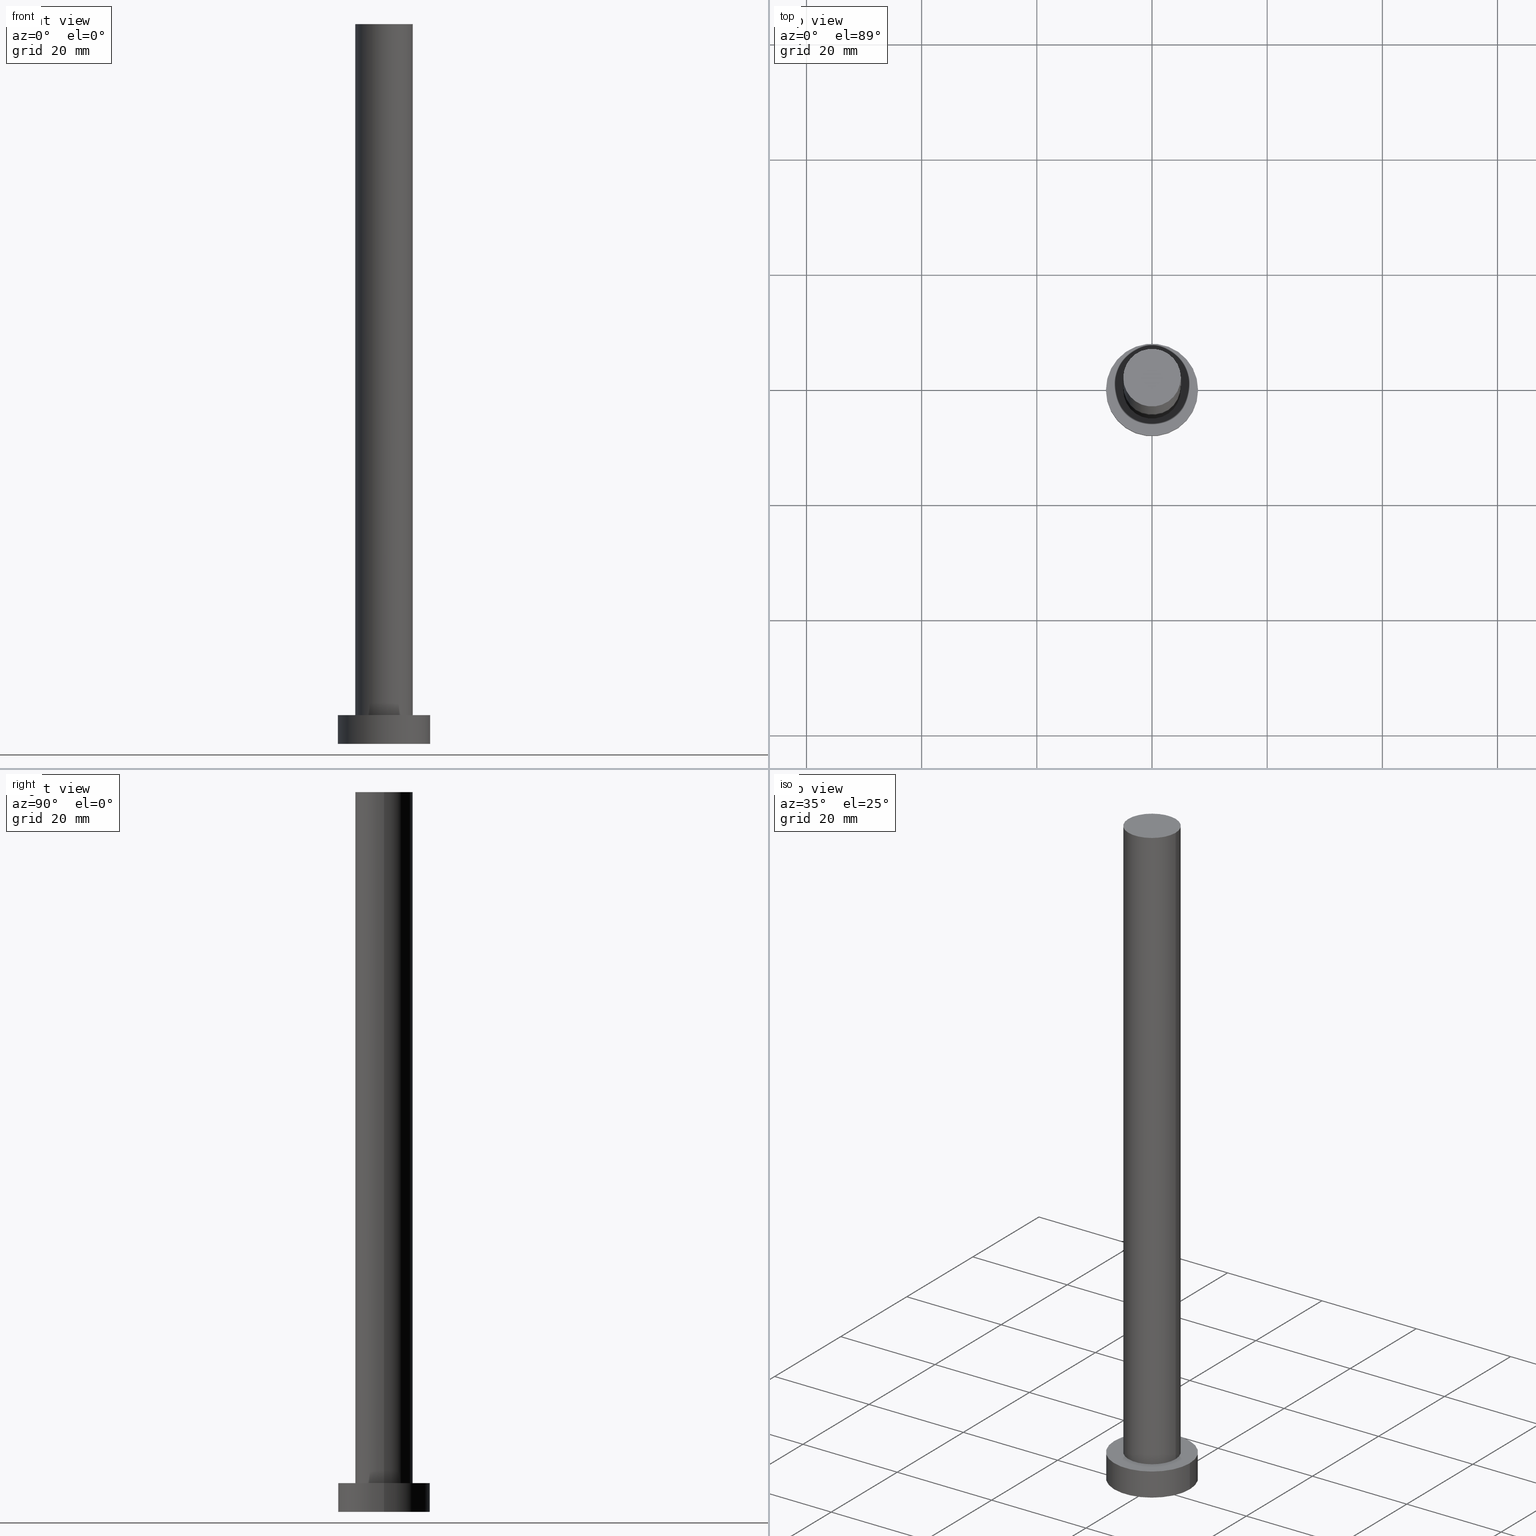
[diagram: canonical four-view strip — front | top / right | iso, engineering-drawing reading convention]
A machine part, canonical four-view strip (front | top / right | iso — engineering-drawing reading convention). The complete STEP part file that produces these views, byte-faithful:
ISO-10303-21;
HEADER;
FILE_DESCRIPTION (( 'STEP AP203' ),
    '1' );
FILE_NAME ('c6aa.STEP',
    '2023-02-12T11:28:07',
    ( '' ),
    ( '' ),
    'SwSTEP 2.0',
    'SolidWorks 2019',
    '' );
FILE_SCHEMA (( 'CONFIG_CONTROL_DESIGN' ));
ENDSEC;

DATA;
#1 = DIRECTION ( 'NONE',  ( 0.000000000000000000, 0.000000000000000000, 1.000000000000000000 ) ) ;
#2 = CIRCLE ( 'NONE', #129, 5.000000000000000888 ) ;
#3 = PERSON_AND_ORGANIZATION_ROLE ( 'design_supplier' ) ;
#4 = EDGE_CURVE ( 'NONE', #217, #7, #137, .T. ) ;
#5 = FACE_OUTER_BOUND ( 'NONE', #131, .T. ) ;
#6 = AXIS2_PLACEMENT_3D ( 'NONE', #181, #84, #65 ) ;
#7 = VERTEX_POINT ( 'NONE', #36 ) ;
#8 = CARTESIAN_POINT ( 'NONE',  ( 5.000000000000000888, 6.123233995736767268E-16, 125.0000000000000000 ) ) ;
#9 = APPROVAL_ROLE ( '' ) ;
#10 = EDGE_CURVE ( 'NONE', #206, #255, #147, .T. ) ;
#11 = CARTESIAN_POINT ( 'NONE',  ( 0.000000000000000000, 0.000000000000000000, 0.000000000000000000 ) ) ;
#12 = DATE_AND_TIME ( #35, #194 ) ;
#13 = DIRECTION ( 'NONE',  ( 1.000000000000000000, 0.000000000000000000, 0.000000000000000000 ) ) ;
#14 = PRODUCT ( 'c6aa', 'c6aa', '', ( #127 ) ) ;
#15 = EDGE_CURVE ( 'NONE', #255, #206, #44, .T. ) ;
#16 = DIRECTION ( 'NONE',  ( -1.000000000000000000, 0.000000000000000000, 0.000000000000000000 ) ) ;
#17 = DIRECTION ( 'NONE',  ( 0.000000000000000000, 0.000000000000000000, 1.000000000000000000 ) ) ;
#18 = VERTEX_POINT ( 'NONE', #149 ) ;
#19 = FACE_OUTER_BOUND ( 'NONE', #123, .T. ) ;
#20 = VERTEX_POINT ( 'NONE', #32 ) ;
#21 = LOCAL_TIME ( 12, 28, 7.000000000000000000, #244 ) ;
#22 = APPROVAL_STATUS ( 'not_yet_approved' ) ;
#23 = ADVANCED_FACE ( 'NONE', ( #203 ), #198, .T. ) ;
#24 = DATE_AND_TIME ( #200, #164 ) ;
#25 = DIRECTION ( 'NONE',  ( 0.000000000000000000, 0.000000000000000000, 1.000000000000000000 ) ) ;
#26 = ORIENTED_EDGE ( 'NONE', *, *, #4, .T. ) ;
#27 = FACE_OUTER_BOUND ( 'NONE', #59, .T. ) ;
#28 = APPROVAL_STATUS ( 'not_yet_approved' ) ;
#29 = DIRECTION ( 'NONE',  ( -0.000000000000000000, -0.000000000000000000, -1.000000000000000000 ) ) ;
#30 = DIRECTION ( 'NONE',  ( -1.000000000000000000, 0.000000000000000000, 0.000000000000000000 ) ) ;
#31 = APPROVAL_ROLE ( '' ) ;
#32 = CARTESIAN_POINT ( 'NONE',  ( 5.000000000000000888, 6.123233995736767268E-16, 125.0000000000000000 ) ) ;
#33 = VECTOR ( 'NONE', #46, 1000.000000000000000 ) ;
#34 = LINE ( 'NONE', #103, #33 ) ;
#35 = CALENDAR_DATE ( 2023, 12, 2 ) ;
#36 = CARTESIAN_POINT ( 'NONE',  ( 8.000000000000000000, 9.797174393178825657E-16, 0.000000000000000000 ) ) ;
#37 = PERSON_AND_ORGANIZATION ( #112, #154 ) ;
#38 = CYLINDRICAL_SURFACE ( 'NONE', #72, 5.000000000000000888 ) ;
#39 = CARTESIAN_POINT ( 'NONE',  ( -8.000000000000000000, 0.000000000000000000, 0.000000000000000000 ) ) ;
#40 = ORIENTED_EDGE ( 'NONE', *, *, #97, .T. ) ;
#41 = APPROVAL_ROLE ( '' ) ;
#42 = PLANE ( 'NONE',  #167 ) ;
#43 = CC_DESIGN_PERSON_AND_ORGANIZATION_ASSIGNMENT ( #116, #3, ( #240 ) ) ;
#44 = CIRCLE ( 'NONE', #222, 8.000000000000000000 ) ;
#45 = CARTESIAN_POINT ( 'NONE',  ( -8.000000000000000000, 0.000000000000000000, 5.000000000000000000 ) ) ;
#46 = DIRECTION ( 'NONE',  ( -0.000000000000000000, -0.000000000000000000, -1.000000000000000000 ) ) ;
#47 = APPROVAL_PERSON_ORGANIZATION ( #211, #216, #41 ) ;
#48 = ORIENTED_EDGE ( 'NONE', *, *, #15, .F. ) ;
#49 = CARTESIAN_POINT ( 'NONE',  ( -5.000000000000000888, 0.000000000000000000, 125.0000000000000000 ) ) ;
#50 = ADVANCED_FACE ( 'NONE', ( #5 ), #201, .F. ) ;
#51 = PRODUCT_DEFINITION_SHAPE ( 'NONE', 'NONE',  #92 ) ;
#52 = DIRECTION ( 'NONE',  ( 0.000000000000000000, 0.000000000000000000, 1.000000000000000000 ) ) ;
#53 = AXIS2_PLACEMENT_3D ( 'NONE', #118, #29, #245 ) ;
#54 = EDGE_LOOP ( 'NONE', ( #249, #187 ) ) ;
#55 = CC_DESIGN_PERSON_AND_ORGANIZATION_ASSIGNMENT ( #37, #106, ( #92 ) ) ;
#56 = PERSON_AND_ORGANIZATION_ROLE ( 'design_owner' ) ;
#57 = ORIENTED_EDGE ( 'NONE', *, *, #10, .F. ) ;
#58 = LOCAL_TIME ( 12, 28, 7.000000000000000000, #60 ) ;
#59 = EDGE_LOOP ( 'NONE', ( #57, #40, #101, #120 ) ) ;
#60 = COORDINATED_UNIVERSAL_TIME_OFFSET ( 1, 0, .AHEAD. ) ;
#61 = VECTOR ( 'NONE', #213, 1000.000000000000000 ) ;
#62 = EDGE_CURVE ( 'NONE', #20, #18, #80, .T. ) ;
#63 = CC_DESIGN_PERSON_AND_ORGANIZATION_ASSIGNMENT ( #225, #56, ( #14 ) ) ;
#64 = APPROVAL_DATE_TIME ( #24, #169 ) ;
#65 = DIRECTION ( 'NONE',  ( -1.000000000000000000, 0.000000000000000000, 0.000000000000000000 ) ) ;
#66 = ORIENTED_EDGE ( 'NONE', *, *, #4, .F. ) ;
#67 = APPLICATION_PROTOCOL_DEFINITION ( 'international standard', 'config_control_design', 1994, #184 ) ;
#68 = DIRECTION ( 'NONE',  ( 0.000000000000000000, 0.000000000000000000, 1.000000000000000000 ) ) ;
#69 = CIRCLE ( 'NONE', #180, 5.000000000000000888 ) ;
#70 = SECURITY_CLASSIFICATION_LEVEL ( 'unclassified' ) ;
#71 = ADVANCED_FACE ( 'NONE', ( #27 ), #150, .T. ) ;
#72 = AXIS2_PLACEMENT_3D ( 'NONE', #109, #190, #16 ) ;
#73 = ORIENTED_EDGE ( 'NONE', *, *, #186, .F. ) ;
#74 = EDGE_CURVE ( 'NONE', #241, #238, #34, .T. ) ;
#75 = CARTESIAN_POINT ( 'NONE',  ( 0.000000000000000000, 0.000000000000000000, 125.0000000000000000 ) ) ;
#76 = DATE_AND_TIME ( #229, #58 ) ;
#77 = VECTOR ( 'NONE', #165, 1000.000000000000000 ) ;
#78 = CC_DESIGN_DATE_AND_TIME_ASSIGNMENT ( #76, #157, ( #92 ) ) ;
#79 = AXIS2_PLACEMENT_3D ( 'NONE', #11, #25, #197 ) ;
#80 = LINE ( 'NONE', #8, #77 ) ;
#81 = DIRECTION ( 'NONE',  ( 1.000000000000000000, 0.000000000000000000, 0.000000000000000000 ) ) ;
#82 = CC_DESIGN_SECURITY_CLASSIFICATION ( #232, ( #240 ) ) ;
#83 = FACE_OUTER_BOUND ( 'NONE', #54, .T. ) ;
#84 = DIRECTION ( 'NONE',  ( -0.000000000000000000, -0.000000000000000000, -1.000000000000000000 ) ) ;
#85 = APPROVAL_DATE_TIME ( #12, #204 ) ;
#86 = APPROVAL_PERSON_ORGANIZATION ( #223, #169, #31 ) ;
#87 = CC_DESIGN_DATE_AND_TIME_ASSIGNMENT ( #128, #125, ( #232 ) ) ;
#88 = DIRECTION ( 'NONE',  ( 1.000000000000000000, 0.000000000000000000, 0.000000000000000000 ) ) ;
#89 =( GEOMETRIC_REPRESENTATION_CONTEXT ( 3 ) GLOBAL_UNCERTAINTY_ASSIGNED_CONTEXT ( ( #188 ) ) GLOBAL_UNIT_ASSIGNED_CONTEXT ( ( #218, #236, #177 ) ) REPRESENTATION_CONTEXT ( 'NONE', 'WORKASPACE' ) );
#90 = EDGE_CURVE ( 'NONE', #18, #238, #159, .T. ) ;
#91 = DIRECTION ( 'NONE',  ( 1.000000000000000000, 0.000000000000000000, 0.000000000000000000 ) ) ;
#92 = PRODUCT_DEFINITION ( 'NEZN�M�', '', #240, #161 ) ;
#93 = ORIENTED_EDGE ( 'NONE', *, *, #97, .F. ) ;
#94 = FACE_OUTER_BOUND ( 'NONE', #168, .T. ) ;
#95 = EDGE_LOOP ( 'NONE', ( #111, #191, #145, #163 ) ) ;
#96 = CARTESIAN_POINT ( 'NONE',  ( 0.000000000000000000, 0.000000000000000000, 125.0000000000000000 ) ) ;
#97 = EDGE_CURVE ( 'NONE', #206, #7, #228, .T. ) ;
#98 = APPLICATION_CONTEXT ( 'configuration controlled 3d designs of mechanical parts and assemblies' ) ;
#99 = PLANE ( 'NONE',  #115 ) ;
#100 = AXIS2_PLACEMENT_3D ( 'NONE', #226, #126, #102 ) ;
#101 = ORIENTED_EDGE ( 'NONE', *, *, #186, .T. ) ;
#102 = DIRECTION ( 'NONE',  ( 1.000000000000000000, 0.000000000000000000, 0.000000000000000000 ) ) ;
#103 = CARTESIAN_POINT ( 'NONE',  ( -5.000000000000000888, 0.000000000000000000, 125.0000000000000000 ) ) ;
#104 = DIRECTION ( 'NONE',  ( 0.000000000000000000, 0.000000000000000000, 1.000000000000000000 ) ) ;
#105 = CARTESIAN_POINT ( 'NONE',  ( 0.000000000000000000, 0.000000000000000000, 0.000000000000000000 ) ) ;
#106 = PERSON_AND_ORGANIZATION_ROLE ( 'creator' ) ;
#107 = DIRECTION ( 'NONE',  ( 0.000000000000000000, 0.000000000000000000, 1.000000000000000000 ) ) ;
#108 = ORIENTED_EDGE ( 'NONE', *, *, #185, .F. ) ;
#109 = CARTESIAN_POINT ( 'NONE',  ( 0.000000000000000000, 0.000000000000000000, 125.0000000000000000 ) ) ;
#110 = EDGE_CURVE ( 'NONE', #241, #20, #2, .T. ) ;
#111 = ORIENTED_EDGE ( 'NONE', *, *, #62, .F. ) ;
#112 = PERSON ( 'NEUR�EN�', 'NEUR�EN�', 'NEUR�EN�', ('NEUR�EN�'), ('NEUR�EN�'), ('NEUR�EN�') ) ;
#113 = DIRECTION ( 'NONE',  ( 1.000000000000000000, 0.000000000000000000, -0.000000000000000000 ) ) ;
#114 = MANIFOLD_SOLID_BREP ( 'P�idat vysunut�m3', #141 ) ;
#115 = AXIS2_PLACEMENT_3D ( 'NONE', #239, #151, #237 ) ;
#116 = PERSON_AND_ORGANIZATION ( #112, #154 ) ;
#117 = DATE_AND_TIME ( #155, #132 ) ;
#118 = CARTESIAN_POINT ( 'NONE',  ( 0.000000000000000000, 0.000000000000000000, 125.0000000000000000 ) ) ;
#119 = PERSON_AND_ORGANIZATION ( #112, #154 ) ;
#120 = ORIENTED_EDGE ( 'NONE', *, *, #214, .F. ) ;
#121 = CARTESIAN_POINT ( 'NONE',  ( -5.000000000000000888, 0.000000000000000000, 5.000000000000000000 ) ) ;
#122 = CALENDAR_DATE ( 2023, 12, 2 ) ;
#123 = EDGE_LOOP ( 'NONE', ( #93, #48, #134, #26 ) ) ;
#124 = DIRECTION ( 'NONE',  ( -0.000000000000000000, -0.000000000000000000, -1.000000000000000000 ) ) ;
#125 = DATE_TIME_ROLE ( 'classification_date' ) ;
#126 = DIRECTION ( 'NONE',  ( 0.000000000000000000, 0.000000000000000000, 1.000000000000000000 ) ) ;
#127 = MECHANICAL_CONTEXT ( 'NONE', #184, 'mechanical' ) ;
#128 = DATE_AND_TIME ( #122, #21 ) ;
#129 = AXIS2_PLACEMENT_3D ( 'NONE', #75, #17, #171 ) ;
#130 = DIRECTION ( 'NONE',  ( 0.000000000000000000, 0.000000000000000000, 1.000000000000000000 ) ) ;
#131 = EDGE_LOOP ( 'NONE', ( #66, #73 ) ) ;
#132 = LOCAL_TIME ( 12, 28, 7.000000000000000000, #136 ) ;
#133 = CARTESIAN_POINT ( 'NONE',  ( 0.000000000000000000, 0.000000000000000000, 0.000000000000000000 ) ) ;
#134 = ORIENTED_EDGE ( 'NONE', *, *, #214, .T. ) ;
#135 = FACE_OUTER_BOUND ( 'NONE', #210, .T. ) ;
#136 = COORDINATED_UNIVERSAL_TIME_OFFSET ( 1, 0, .AHEAD. ) ;
#137 = CIRCLE ( 'NONE', #189, 8.000000000000000000 ) ;
#138 = CARTESIAN_POINT ( 'NONE',  ( -8.000000000000000000, 0.000000000000000000, 5.000000000000000000 ) ) ;
#139 = CC_DESIGN_PERSON_AND_ORGANIZATION_ASSIGNMENT ( #119, #178, ( #240 ) ) ;
#140 = ORIENTED_EDGE ( 'NONE', *, *, #90, .F. ) ;
#141 = CLOSED_SHELL ( 'NONE', ( #175, #71, #233, #242, #50, #23, #146 ) ) ;
#142 = COORDINATED_UNIVERSAL_TIME_OFFSET ( 1, 0, .AHEAD. ) ;
#143 = APPROVAL_DATE_TIME ( #117, #216 ) ;
#144 = ORIENTED_EDGE ( 'NONE', *, *, #110, .T. ) ;
#145 = ORIENTED_EDGE ( 'NONE', *, *, #74, .T. ) ;
#146 = ADVANCED_FACE ( 'NONE', ( #94 ), #42, .T. ) ;
#147 = CIRCLE ( 'NONE', #100, 8.000000000000000000 ) ;
#148 = CC_DESIGN_PERSON_AND_ORGANIZATION_ASSIGNMENT ( #199, #176, ( #232 ) ) ;
#149 = CARTESIAN_POINT ( 'NONE',  ( 5.000000000000000888, 6.123233995736767268E-16, 5.000000000000000000 ) ) ;
#150 = CYLINDRICAL_SURFACE ( 'NONE', #6, 8.000000000000000000 ) ;
#151 = DIRECTION ( 'NONE',  ( 0.000000000000000000, 0.000000000000000000, 1.000000000000000000 ) ) ;
#152 = ORIENTED_EDGE ( 'NONE', *, *, #90, .T. ) ;
#153 = PERSON_AND_ORGANIZATION ( #112, #154 ) ;
#154 = ORGANIZATION ( 'NEUR�EN�', 'NEUR�EN�', '' ) ;
#155 = CALENDAR_DATE ( 2023, 12, 2 ) ;
#156 = EDGE_CURVE ( 'NONE', #20, #241, #69, .T. ) ;
#157 = DATE_TIME_ROLE ( 'creation_date' ) ;
#158 = CARTESIAN_POINT ( 'NONE',  ( 8.000000000000000000, 9.797174393178825657E-16, 5.000000000000000000 ) ) ;
#159 = CIRCLE ( 'NONE', #202, 5.000000000000000888 ) ;
#160 = DIRECTION ( 'NONE',  ( 1.000000000000000000, 0.000000000000000000, 0.000000000000000000 ) ) ;
#161 = DESIGN_CONTEXT ( 'detailed design', #98, 'design' ) ;
#162 = CC_DESIGN_APPROVAL ( #204, ( #92 ) ) ;
#163 = ORIENTED_EDGE ( 'NONE', *, *, #185, .T. ) ;
#164 = LOCAL_TIME ( 12, 28, 7.000000000000000000, #142 ) ;
#165 = DIRECTION ( 'NONE',  ( -0.000000000000000000, -0.000000000000000000, -1.000000000000000000 ) ) ;
#166 = ORIENTED_EDGE ( 'NONE', *, *, #62, .T. ) ;
#167 = AXIS2_PLACEMENT_3D ( 'NONE', #234, #107, #113 ) ;
#168 = EDGE_LOOP ( 'NONE', ( #144, #182 ) ) ;
#169 = APPROVAL ( #28, 'NEUR�EN�' ) ;
#170 = AXIS2_PLACEMENT_3D ( 'NONE', #253, #193, #91 ) ;
#171 = DIRECTION ( 'NONE',  ( 1.000000000000000000, 0.000000000000000000, 0.000000000000000000 ) ) ;
#172 = DIRECTION ( 'NONE',  ( 0.000000000000000000, 0.000000000000000000, 1.000000000000000000 ) ) ;
#173 = CARTESIAN_POINT ( 'NONE',  ( 0.000000000000000000, 0.000000000000000000, 0.000000000000000000 ) ) ;
#174 = CYLINDRICAL_SURFACE ( 'NONE', #215, 8.000000000000000000 ) ;
#175 = ADVANCED_FACE ( 'NONE', ( #135 ), #38, .T. ) ;
#176 = PERSON_AND_ORGANIZATION_ROLE ( 'classification_officer' ) ;
#177 =( NAMED_UNIT ( * ) SI_UNIT ( $, .STERADIAN. ) SOLID_ANGLE_UNIT ( ) );
#178 = PERSON_AND_ORGANIZATION_ROLE ( 'creator' ) ;
#179 = CARTESIAN_POINT ( 'NONE',  ( 0.000000000000000000, 0.000000000000000000, 5.000000000000000000 ) ) ;
#180 = AXIS2_PLACEMENT_3D ( 'NONE', #96, #1, #230 ) ;
#181 = CARTESIAN_POINT ( 'NONE',  ( 0.000000000000000000, 0.000000000000000000, 5.000000000000000000 ) ) ;
#182 = ORIENTED_EDGE ( 'NONE', *, *, #156, .T. ) ;
#183 = AXIS2_PLACEMENT_3D ( 'NONE', #133, #130, #88 ) ;
#184 = APPLICATION_CONTEXT ( 'configuration controlled 3d designs of mechanical parts and assemblies' ) ;
#185 = EDGE_CURVE ( 'NONE', #238, #18, #220, .T. ) ;
#186 = EDGE_CURVE ( 'NONE', #7, #217, #248, .T. ) ;
#187 = ORIENTED_EDGE ( 'NONE', *, *, #10, .T. ) ;
#188 = UNCERTAINTY_MEASURE_WITH_UNIT (LENGTH_MEASURE( 1.000000000000000082E-05 ), #218, 'distance_accuracy_value', 'NONE');
#189 = AXIS2_PLACEMENT_3D ( 'NONE', #105, #104, #13 ) ;
#190 = DIRECTION ( 'NONE',  ( -0.000000000000000000, -0.000000000000000000, -1.000000000000000000 ) ) ;
#191 = ORIENTED_EDGE ( 'NONE', *, *, #110, .F. ) ;
#192 = ORIENTED_EDGE ( 'NONE', *, *, #74, .F. ) ;
#193 = DIRECTION ( 'NONE',  ( 0.000000000000000000, 0.000000000000000000, 1.000000000000000000 ) ) ;
#194 = LOCAL_TIME ( 12, 28, 7.000000000000000000, #246 ) ;
#195 = ADVANCED_BREP_SHAPE_REPRESENTATION ( 'c6aa', ( #114, #183 ), #89 ) ;
#196 = DIRECTION ( 'NONE',  ( -0.000000000000000000, -0.000000000000000000, -1.000000000000000000 ) ) ;
#197 = DIRECTION ( 'NONE',  ( 1.000000000000000000, 0.000000000000000000, -0.000000000000000000 ) ) ;
#198 = CYLINDRICAL_SURFACE ( 'NONE', #53, 5.000000000000000888 ) ;
#199 = PERSON_AND_ORGANIZATION ( #112, #154 ) ;
#200 = CALENDAR_DATE ( 2023, 12, 2 ) ;
#201 = PLANE ( 'NONE',  #79 ) ;
#202 = AXIS2_PLACEMENT_3D ( 'NONE', #179, #68, #251 ) ;
#203 = FACE_OUTER_BOUND ( 'NONE', #95, .T. ) ;
#204 = APPROVAL ( #209, 'NEUR�EN�' ) ;
#205 = PRODUCT_RELATED_PRODUCT_CATEGORY ( 'detail', '', ( #14 ) ) ;
#206 = VERTEX_POINT ( 'NONE', #158 ) ;
#207 = APPLICATION_PROTOCOL_DEFINITION ( 'international standard', 'config_control_design', 1994, #98 ) ;
#208 = AXIS2_PLACEMENT_3D ( 'NONE', #173, #172, #160 ) ;
#209 = APPROVAL_STATUS ( 'not_yet_approved' ) ;
#210 = EDGE_LOOP ( 'NONE', ( #221, #166, #152, #192 ) ) ;
#211 = PERSON_AND_ORGANIZATION ( #112, #154 ) ;
#212 = CC_DESIGN_APPROVAL ( #216, ( #240 ) ) ;
#213 = DIRECTION ( 'NONE',  ( -0.000000000000000000, -0.000000000000000000, -1.000000000000000000 ) ) ;
#214 = EDGE_CURVE ( 'NONE', #255, #217, #231, .T. ) ;
#215 = AXIS2_PLACEMENT_3D ( 'NONE', #254, #124, #30 ) ;
#216 = APPROVAL ( #22, 'NEUR�EN�' ) ;
#217 = VERTEX_POINT ( 'NONE', #39 ) ;
#218 =( LENGTH_UNIT ( ) NAMED_UNIT ( * ) SI_UNIT ( .MILLI., .METRE. ) );
#219 = SHAPE_DEFINITION_REPRESENTATION ( #51, #195 ) ;
#220 = CIRCLE ( 'NONE', #170, 5.000000000000000888 ) ;
#221 = ORIENTED_EDGE ( 'NONE', *, *, #156, .F. ) ;
#222 = AXIS2_PLACEMENT_3D ( 'NONE', #247, #52, #81 ) ;
#223 = PERSON_AND_ORGANIZATION ( #112, #154 ) ;
#224 = CC_DESIGN_APPROVAL ( #169, ( #232 ) ) ;
#225 = PERSON_AND_ORGANIZATION ( #112, #154 ) ;
#226 = CARTESIAN_POINT ( 'NONE',  ( 0.000000000000000000, 0.000000000000000000, 5.000000000000000000 ) ) ;
#227 = VECTOR ( 'NONE', #196, 1000.000000000000000 ) ;
#228 = LINE ( 'NONE', #252, #227 ) ;
#229 = CALENDAR_DATE ( 2023, 12, 2 ) ;
#230 = DIRECTION ( 'NONE',  ( 1.000000000000000000, 0.000000000000000000, 0.000000000000000000 ) ) ;
#231 = LINE ( 'NONE', #138, #61 ) ;
#232 = SECURITY_CLASSIFICATION ( '', '', #70 ) ;
#233 = ADVANCED_FACE ( 'NONE', ( #19 ), #174, .T. ) ;
#234 = CARTESIAN_POINT ( 'NONE',  ( 0.000000000000000000, 0.000000000000000000, 125.0000000000000000 ) ) ;
#235 = APPROVAL_PERSON_ORGANIZATION ( #153, #204, #9 ) ;
#236 =( NAMED_UNIT ( * ) PLANE_ANGLE_UNIT ( ) SI_UNIT ( $, .RADIAN. ) );
#237 = DIRECTION ( 'NONE',  ( 1.000000000000000000, 0.000000000000000000, -0.000000000000000000 ) ) ;
#238 = VERTEX_POINT ( 'NONE', #121 ) ;
#239 = CARTESIAN_POINT ( 'NONE',  ( 0.000000000000000000, 0.000000000000000000, 5.000000000000000000 ) ) ;
#240 = PRODUCT_DEFINITION_FORMATION_WITH_SPECIFIED_SOURCE ( 'LIBOVOLN�', '', #14, .NOT_KNOWN. ) ;
#241 = VERTEX_POINT ( 'NONE', #49 ) ;
#242 = ADVANCED_FACE ( 'NONE', ( #243, #83 ), #99, .T. ) ;
#243 = FACE_BOUND ( 'NONE', #250, .T. ) ;
#244 = COORDINATED_UNIVERSAL_TIME_OFFSET ( 1, 0, .AHEAD. ) ;
#245 = DIRECTION ( 'NONE',  ( -1.000000000000000000, 0.000000000000000000, 0.000000000000000000 ) ) ;
#246 = COORDINATED_UNIVERSAL_TIME_OFFSET ( 1, 0, .AHEAD. ) ;
#247 = CARTESIAN_POINT ( 'NONE',  ( 0.000000000000000000, 0.000000000000000000, 5.000000000000000000 ) ) ;
#248 = CIRCLE ( 'NONE', #208, 8.000000000000000000 ) ;
#249 = ORIENTED_EDGE ( 'NONE', *, *, #15, .T. ) ;
#250 = EDGE_LOOP ( 'NONE', ( #108, #140 ) ) ;
#251 = DIRECTION ( 'NONE',  ( 1.000000000000000000, 0.000000000000000000, 0.000000000000000000 ) ) ;
#252 = CARTESIAN_POINT ( 'NONE',  ( 8.000000000000000000, 9.797174393178825657E-16, 5.000000000000000000 ) ) ;
#253 = CARTESIAN_POINT ( 'NONE',  ( 0.000000000000000000, 0.000000000000000000, 5.000000000000000000 ) ) ;
#254 = CARTESIAN_POINT ( 'NONE',  ( 0.000000000000000000, 0.000000000000000000, 5.000000000000000000 ) ) ;
#255 = VERTEX_POINT ( 'NONE', #45 ) ;
ENDSEC;
END-ISO-10303-21;
